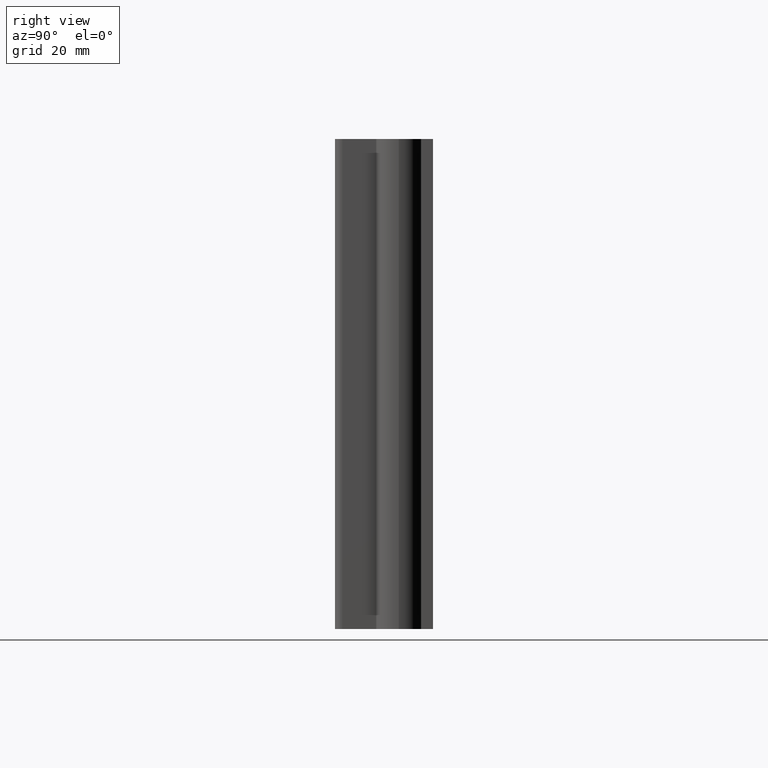
[diagram: clean part render]
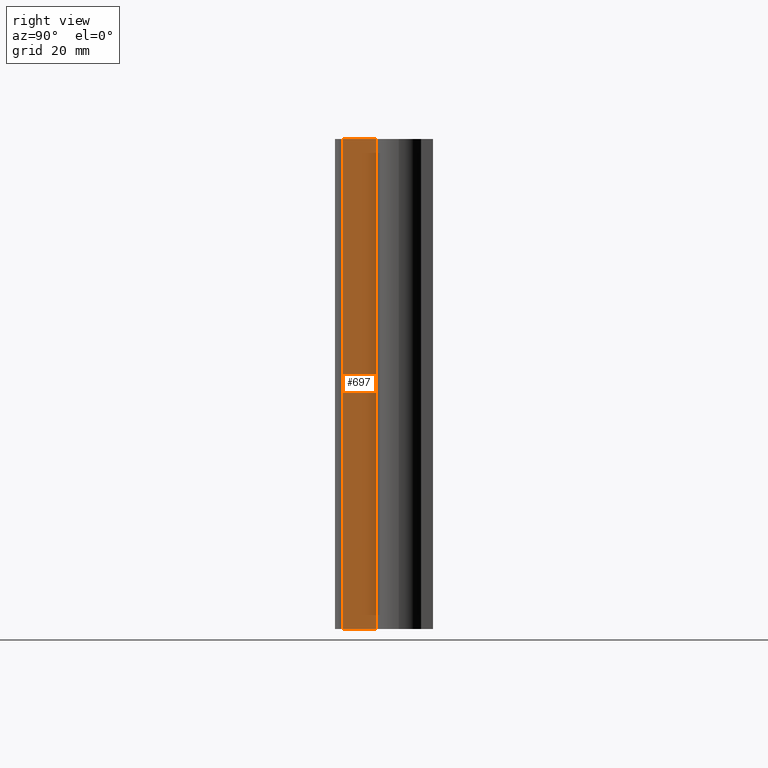
[diagram: same view with one face highlighted and labeled with its STEP entity id]
A machine part, right view. The second image highlights one B-rep face of the part: STEP entity #697.
In plain terms, the highlighted planar face has unit normal (1, 0, 0).
Its self-contained STEP definition (entity closure, byte-faithful):
#41=PLANE('',#809);
#75=FACE_OUTER_BOUND('',#112,.T.);
#112=EDGE_LOOP('',(#596,#597,#598,#599));
#148=LINE('',#1109,#221);
#160=LINE('',#1146,#233);
#175=LINE('',#1185,#248);
#189=LINE('',#1215,#262);
#221=VECTOR('',#900,10.);
#233=VECTOR('',#930,10.);
#248=VECTOR('',#961,10.);
#262=VECTOR('',#987,10.);
#323=VERTEX_POINT('',#1106);
#324=VERTEX_POINT('',#1108);
#340=VERTEX_POINT('',#1145);
#356=VERTEX_POINT('',#1183);
#397=EDGE_CURVE('',#324,#323,#148,.T.);
#416=EDGE_CURVE('',#324,#340,#160,.T.);
#436=EDGE_CURVE('',#356,#323,#175,.T.);
#453=EDGE_CURVE('',#340,#356,#189,.T.);
#596=ORIENTED_EDGE('',*,*,#453,.F.);
#597=ORIENTED_EDGE('',*,*,#416,.F.);
#598=ORIENTED_EDGE('',*,*,#397,.T.);
#599=ORIENTED_EDGE('',*,*,#436,.F.);
#697=ADVANCED_FACE('',(#75),#41,.T.);
#809=AXIS2_PLACEMENT_3D('',#1216,#988,#989);
#900=DIRECTION('',(0.,0.,1.));
#930=DIRECTION('',(0.,-1.,0.));
#961=DIRECTION('',(0.,1.,0.));
#987=DIRECTION('',(0.,0.,1.));
#988=DIRECTION('center_axis',(1.,0.,0.));
#989=DIRECTION('ref_axis',(0.,1.,0.));
#1106=CARTESIAN_POINT('',(51.5,-1.58257569495584,100.));
#1108=CARTESIAN_POINT('',(51.5,-1.58257569495584,0.));
#1109=CARTESIAN_POINT('',(51.5,-1.58257569495584,100.));
#1145=CARTESIAN_POINT('',(51.5,-8.5,0.));
#1146=CARTESIAN_POINT('',(51.5,10.,0.));
#1183=CARTESIAN_POINT('',(51.5,-8.5,100.));
#1185=CARTESIAN_POINT('',(51.5,10.,100.));
#1215=CARTESIAN_POINT('',(51.5,-8.5,0.));
#1216=CARTESIAN_POINT('Origin',(51.5,-10.,0.));